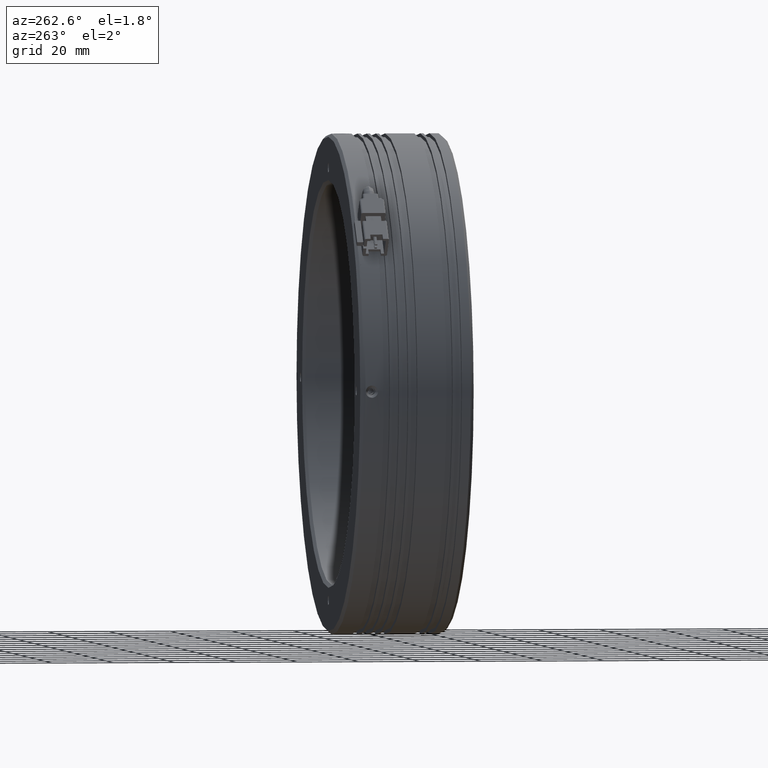
[diagram: clean part render]
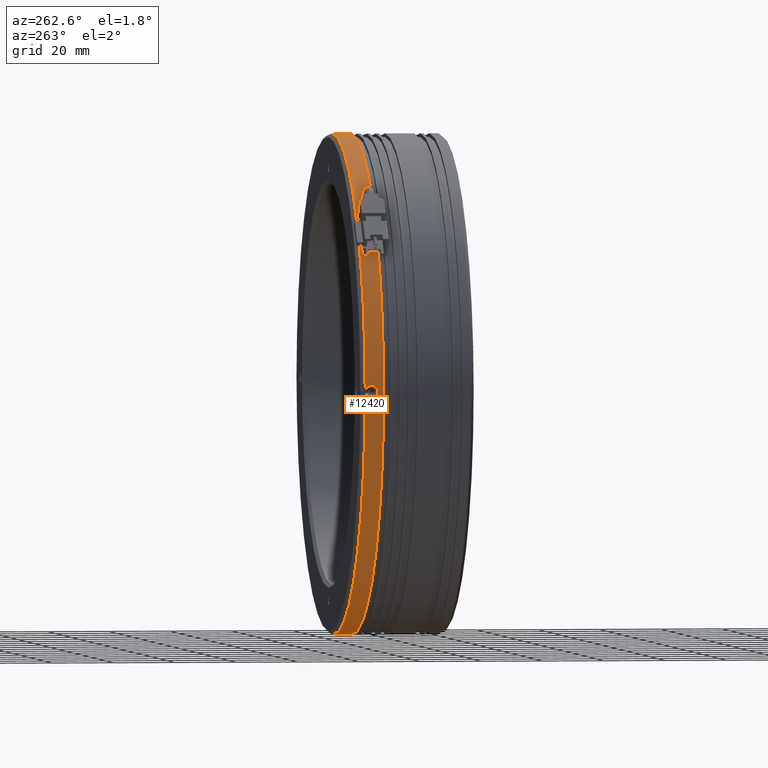
[diagram: same view with one face highlighted and labeled with its STEP entity id]
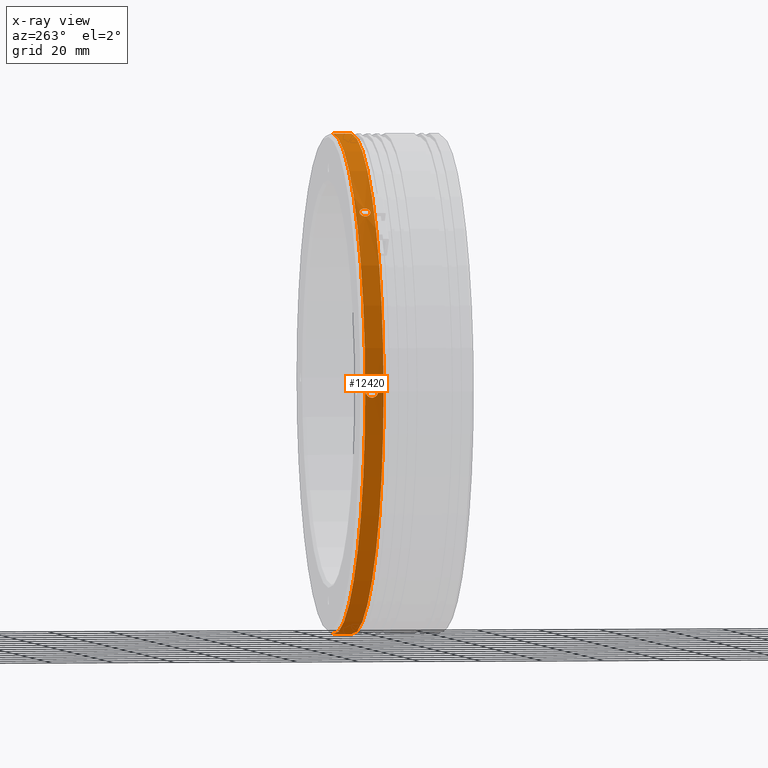
[diagram: x-ray of the same camera — body ghosted, the highlighted face saturated]
A machine part, auxiliary view. The second image highlights one B-rep face of the part: STEP entity #12420.
The next image is the same camera in x-ray: the body ghosted, the highlighted face saturated — about 0% of this face is hidden behind the body in this view.
In plain terms, the highlighted cylindrical surface (partial cylindrical patch) has radius 81 mm, axis along (-0, -1, -0).
Its self-contained STEP definition (entity closure, byte-faithful):
#36 = CARTESIAN_POINT ( 'NONE',  ( -11.74828480183142800, 24.43183382890321900, -80.97620778270633900 ) ) ;
#157 = CIRCLE ( 'NONE', #1471, 81.00000000000000000 ) ;
#314 = CARTESIAN_POINT ( 'NONE',  ( -10.42641141089481300, 22.27489432019287100, 80.99754875068434500 ) ) ;
#403 = CARTESIAN_POINT ( 'NONE',  ( -11.69840905936837100, 23.65539804451717000, -80.97740162032246800 ) ) ;
#419 = CARTESIAN_POINT ( 'NONE',  ( -9.785022266880036000, 26.37111437184006100, 0.0000000000000000000 ) ) ;
#422 = DIRECTION ( 'NONE',  ( -0.0000000000000000000, -1.000000000000000000, -0.0000000000000000000 ) ) ;
#440 = DIRECTION ( 'NONE',  ( 0.0000000000000000000, 0.0000000000000000000, -1.000000000000000000 ) ) ;
#598 = CARTESIAN_POINT ( 'NONE',  ( -68.28473947625502700, 23.37111437184005800, 56.02484347522226200 ) ) ;
#665 = AXIS2_PLACEMENT_3D ( 'NONE', #11434, #2344, #4518 ) ;
#787 = CARTESIAN_POINT ( 'NONE',  ( -90.78348996542590000, 26.10665102794072800, 0.5141684499229808300 ) ) ;
#800 = DIRECTION ( 'NONE',  ( -0.0000000000000000000, -1.000000000000000000, -0.0000000000000000000 ) ) ;
#802 = LINE ( 'NONE', #11123, #6247 ) ;
#847 = CARTESIAN_POINT ( 'NONE',  ( -66.73489396084723100, 21.66725524563013400, 57.59996915224105200 ) ) ;
#953 = CARTESIAN_POINT ( 'NONE',  ( -65.80986574210211900, 23.37111437184005800, 58.49971720937517000 ) ) ;
#984 = CARTESIAN_POINT ( 'NONE',  ( -65.80986574210213300, 23.60232713314788500, 58.49971720937519100 ) ) ;
#1001 = CARTESIAN_POINT ( 'NONE',  ( -65.84283319828527700, 23.82961347443286500, 58.46819282640033300 ) ) ;
#1021 = CARTESIAN_POINT ( 'NONE',  ( -10.04549515732486500, 26.15800746463016000, -80.99968120299523400 ) ) ;
#1038 = EDGE_CURVE ( 'NONE', #5665, #3321, #12055, .T. ) ;
#1050 = CARTESIAN_POINT ( 'NONE',  ( -65.93798344710529600, 24.14765642876648100, 58.37676665758129200 ) ) ;
#1068 = CARTESIAN_POINT ( 'NONE',  ( -11.76091888159797900, 24.17111437184005900, -80.97589661478252800 ) ) ;
#1099 = CARTESIAN_POINT ( 'NONE',  ( -65.97748663612787800, 24.24986317514565900, 58.33876044164112100 ) ) ;
#1163 = CARTESIAN_POINT ( 'NONE',  ( -66.06876800646118400, 24.43930883467826100, 58.25069945741904600 ) ) ;
#1173 = CARTESIAN_POINT ( 'NONE',  ( -66.12096941639710200, 24.52785385864800500, 58.20023830333379800 ) ) ;
#1202 = CARTESIAN_POINT ( 'NONE',  ( -66.23830414791547100, 24.69105621296529700, 58.08643253513150700 ) ) ;
#1210 = CARTESIAN_POINT ( 'NONE',  ( -66.30168217851648600, 24.76333365649894000, 58.02478907902907000 ) ) ;
#1254 = CARTESIAN_POINT ( 'NONE',  ( -66.43740990886965400, 24.88994155732427100, 57.89227901624811800 ) ) ;
#1288 = CARTESIAN_POINT ( 'NONE',  ( -66.51063661023820800, 24.94470801124568400, 57.82054911653097700 ) ) ;
#1348 = CARTESIAN_POINT ( 'NONE',  ( -66.66168595529242700, 25.03225265402858900, 57.67197196597156500 ) ) ;
#1352 = VERTEX_POINT ( 'NONE', #1555 ) ;
#1362 = CARTESIAN_POINT ( 'NONE',  ( -10.77912663496866400, 22.43771255758580500, 80.99397129515043000 ) ) ;
#1373 = CARTESIAN_POINT ( 'NONE',  ( -66.73930990203804500, 25.06525847209005800, 57.59532718081192800 ) ) ;
#1383 = CARTESIAN_POINT ( 'NONE',  ( -66.89867830059749600, 25.10985498084178500, 57.43729526671056400 ) ) ;
#1408 = CARTESIAN_POINT ( 'NONE',  ( -65.80986574210211900, 23.25550800685361700, 58.49971720937518400 ) ) ;
#1419 = CARTESIAN_POINT ( 'NONE',  ( -66.98081609141613100, 25.12119126260634900, 57.35550707700431200 ) ) ;
#1437 = CARTESIAN_POINT ( 'NONE',  ( -65.80986574210211900, 23.37111437184005800, 58.49971720937517000 ) ) ;
#1452 = CARTESIAN_POINT ( 'NONE',  ( -11.56274197615486600, 23.28854709550305200, -80.98050449408603400 ) ) ;
#1453 = CARTESIAN_POINT ( 'NONE',  ( -65.81806136815582400, 23.14183399949140000, 58.49187142760079200 ) ) ;
#1465 = CARTESIAN_POINT ( 'NONE',  ( -67.22289674115607700, 25.12095938616026900, 57.11341934251377200 ) ) ;
#1469 = CARTESIAN_POINT ( 'NONE',  ( -65.85015376115841000, 22.91819243457824800, 58.46111121555389900 ) ) ;
#1471 = AXIS2_PLACEMENT_3D ( 'NONE', #419, #422, #440 ) ;
#1478 = CARTESIAN_POINT ( 'NONE',  ( -67.68028337455469100, 24.90038814405682600, 56.64965201634181800 ) ) ;
#1491 = CARTESIAN_POINT ( 'NONE',  ( -65.87443956132904100, 22.80706695431693400, 58.43782333905974700 ) ) ;
#1500 = CARTESIAN_POINT ( 'NONE',  ( -65.93778030917302100, 22.59515475697780600, 58.37696200798472300 ) ) ;
#1508 = CARTESIAN_POINT ( 'NONE',  ( -67.81656445453262400, 24.77000256405627700, 56.50987682497380100 ) ) ;
#1530 = CARTESIAN_POINT ( 'NONE',  ( -65.97651684405173000, 22.49464748272625800, 58.33969462461521300 ) ) ;
#1533 = CARTESIAN_POINT ( 'NONE',  ( -66.06791247935294100, 22.30443158648087700, 58.25152616919488200 ) ) ;
#1545 = CARTESIAN_POINT ( 'NONE',  ( -66.12105495167492100, 22.21437071494665000, 58.20015410804751400 ) ) ;
#1555 = CARTESIAN_POINT ( 'NONE',  ( -9.785022266880036000, 22.17111437190406400, -81.00000000000000000 ) ) ;
#1564 = CARTESIAN_POINT ( 'NONE',  ( -66.29489909185367900, 21.97222617962384900, 58.03154218765274700 ) ) ;
#1574 = CARTESIAN_POINT ( 'NONE',  ( -67.98517637492740600, 24.52785802873345800, 56.33603268479502900 ) ) ;
#1577 = FACE_BOUND ( 'NONE', #11075, .T. ) ;
#1585 = CARTESIAN_POINT ( 'NONE',  ( -66.43467428322166800, 21.84184059962329600, 57.89526110767482700 ) ) ;
#1589 = CARTESIAN_POINT ( 'NONE',  ( -67.14052934388418200, 21.62103748107377000, 57.19579382453622400 ) ) ;
#1610 = CARTESIAN_POINT ( 'NONE',  ( -68.03654843607475300, 24.43779715719924500, 56.28289021247304900 ) ) ;
#1666 = CARTESIAN_POINT ( 'NONE',  ( -68.12471689149511200, 24.24758126095386900, 56.19149457717185900 ) ) ;
#1691 = CARTESIAN_POINT ( 'NONE',  ( -68.16198427486456500, 24.14707398670231300, 56.15275804229317900 ) ) ;
#1699 = CARTESIAN_POINT ( 'NONE',  ( -68.22284560593961100, 23.93516178936317800, 56.08941729444918400 ) ) ;
#1710 = CARTESIAN_POINT ( 'NONE',  ( -68.03572172429892400, 22.30291990900185400, 56.28374573958130600 ) ) ;
#1715 = CARTESIAN_POINT ( 'NONE',  ( -67.80981134590892600, 21.97889508718118300, 56.51665991163660200 ) ) ;
#1722 = CARTESIAN_POINT ( 'NONE',  ( -68.16178892446116300, 22.59457231491363800, 56.15296118022543200 ) ) ;
#1739 = CARTESIAN_POINT ( 'NONE',  ( -67.98526057021365400, 22.21437488503211500, 56.33594714951724600 ) ) ;
#1753 = CARTESIAN_POINT ( 'NONE',  ( -66.89844160939364300, 21.62126935751984600, 57.43787447427622100 ) ) ;
#1758 = CARTESIAN_POINT ( 'NONE',  ( -68.24613348243376300, 23.82403630910187400, 56.06513149427852500 ) ) ;
#1767 = CARTESIAN_POINT ( 'NONE',  ( -68.12378270852100600, 22.49236556853445600, 56.19246436924800700 ) ) ;
#1778 = CARTESIAN_POINT ( 'NONE',  ( -68.27689369448066300, 23.60039474418871900, 56.03303910127596100 ) ) ;
#1796 = CARTESIAN_POINT ( 'NONE',  ( -68.25321509328020400, 22.91261526924725800, 56.05781093140542000 ) ) ;
#1812 = CARTESIAN_POINT ( 'NONE',  ( -68.28473947625505500, 23.13990167320212500, 56.02484347522227600 ) ) ;
#1819 = CARTESIAN_POINT ( 'NONE',  ( -68.28473947625504100, 23.48672073682649500, 56.02484347522228300 ) ) ;
#1823 = CARTESIAN_POINT ( 'NONE',  ( -68.28473947625502700, 23.37111437184005800, 56.02484347522226200 ) ) ;
#1858 = VECTOR ( 'NONE', #9754, 1000.000000000000000 ) ;
#1935 = CARTESIAN_POINT ( 'NONE',  ( -67.60557138341087600, 21.79752073243442500, 56.72561434335835900 ) ) ;
#1948 = CARTESIAN_POINT ( 'NONE',  ( -67.67730128312800300, 21.85228718635584500, 56.65238764198980400 ) ) ;
#1981 = CARTESIAN_POINT ( 'NONE',  ( -67.22231753359045600, 21.63237376283833400, 57.11365603371763900 ) ) ;
#1983 = CARTESIAN_POINT ( 'NONE',  ( -67.38034944769179900, 21.67697027159006500, 56.95428763515818100 ) ) ;
#1998 = CARTESIAN_POINT ( 'NONE',  ( -67.45699423285144300, 21.70997608965153000, 56.87666368841256300 ) ) ;
#2016 = CARTESIAN_POINT ( 'NONE',  ( -90.76553000844218400, 23.28823684472244100, 1.777572752244399600 ) ) ;
#2067 = CARTESIAN_POINT ( 'NONE',  ( -10.42641141089550200, 26.06733442348742000, -80.99754875068435900 ) ) ;
#2184 = B_SPLINE_CURVE_WITH_KNOTS ( 'NONE', 3,
 ( #3682, #3783, #3598, #3566, #3558, #2016, #3510, #3501, #3471, #3463, #3432, #3423, #3332, #3322, #3291, #3209, #3196, #3164, #3154, #3133, #3108, #3092, #3761, #3073, #3060, #3013, #3000, #2970 ),
 .UNSPECIFIED., .F., .F.,
 ( 4, 2, 2, 2, 2, 2, 2, 2, 2, 2, 2, 2, 2, 4 ),
 ( 0.0000000000000000000, 0.0003896511351084976600, 0.0007793022702169954300, 0.001168953405325493400, 0.001558604540433991300, 0.002337906810650987600, 0.002727557945759484900, 0.003117209080867982600, 0.003506860215976479900, 0.003896511351084978000, 0.004675813621301973400, 0.005065464756410466800, 0.005455115891518960200, 0.006234418161735946900 ),
 .UNSPECIFIED. ) ;
#2237 = CARTESIAN_POINT ( 'NONE',  ( -9.785022266880025300, 22.17111437190462900, 81.00000000000000000 ) ) ;
#2344 = DIRECTION ( 'NONE',  ( -0.0000000000000000000, -1.000000000000000000, -0.0000000000000000000 ) ) ;
#2397 = CARTESIAN_POINT ( 'NONE',  ( -11.09556691876953000, 22.66874346650442400, 80.98944805985138400 ) ) ;
#2452 = CARTESIAN_POINT ( 'NONE',  ( -90.78502462489535700, 26.17121222949551300, 0.1284434222430155300 ) ) ;
#2489 = CARTESIAN_POINT ( 'NONE',  ( -11.35977316050903100, 22.95610301343656100, -80.98472242458849700 ) ) ;
#2684 = CYLINDRICAL_SURFACE ( 'NONE', #665, 81.00000000000000000 ) ;
#2688 = CARTESIAN_POINT ( 'NONE',  ( -9.785022266880036000, -37.73097191106735000, -81.00000000000000000 ) ) ;
#2733 = ORIENTED_EDGE ( 'NONE', *, *, #9345, .T. ) ;
#2939 = CARTESIAN_POINT ( 'NONE',  ( -90.76091888166116900, 24.30237740075952100, -1.975896614773986500 ) ) ;
#2953 = CARTESIAN_POINT ( 'NONE',  ( -90.76091888166118300, 24.17111437184005900, -1.975896614773990000 ) ) ;
#2970 = CARTESIAN_POINT ( 'NONE',  ( -90.76091888166118300, 24.17111437184005900, -1.975896614773990000 ) ) ;
#2971 = CARTESIAN_POINT ( 'NONE',  ( -90.76123031354050900, 24.43179201406771400, -1.963250753960293200 ) ) ;
#2982 = CARTESIAN_POINT ( 'NONE',  ( -90.76242500934590400, 24.68702278896634200, -1.913339547348345000 ) ) ;
#2994 = CARTESIAN_POINT ( 'NONE',  ( -90.76332105511654900, 24.81374059659415800, -1.875506420629359200 ) ) ;
#3000 = CARTESIAN_POINT ( 'NONE',  ( -90.76091888166118300, 23.90858524844445700, -1.975896614773986900 ) ) ;
#3013 = CARTESIAN_POINT ( 'NONE',  ( -90.76221548276473100, 23.64876802429898800, -1.924519398542629400 ) ) ;
#3014 = CARTESIAN_POINT ( 'NONE',  ( -90.76553000844215500, 25.05399189895766900, -1.777572752244966900 ) ) ;
#3034 = CARTESIAN_POINT ( 'NONE',  ( -90.76684415010947800, 25.16859268814437600, -1.717451206225377900 ) ) ;
#3049 = CARTESIAN_POINT ( 'NONE',  ( -90.76975051396347300, 25.38652580681637600, -1.574453847819835600 ) ) ;
#3053 = CARTESIAN_POINT ( 'NONE',  ( -90.77133517309874800, 25.48900420890289100, -1.491760192881963500 ) ) ;
#3060 = CARTESIAN_POINT ( 'NONE',  ( -90.76552902182066900, 23.28832663625585300, -1.777617709900015200 ) ) ;
#3071 = CARTESIAN_POINT ( 'NONE',  ( -90.77604177709349600, 25.76593914684158900, -1.219698800662305100 ) ) ;
#3073 = CARTESIAN_POINT ( 'NONE',  ( -90.76687394077598000, 23.17122062063727500, -1.716038249578416600 ) ) ;
#3074 = CARTESIAN_POINT ( 'NONE',  ( -90.77921028537036800, 25.91622508544903200, -0.9991959111168009500 ) ) ;
#3087 = CARTESIAN_POINT ( 'NONE',  ( -90.78257013278369000, 26.06729235918344800, -0.6414522752959377300 ) ) ;
#3092 = CARTESIAN_POINT ( 'NONE',  ( -90.77132905643824800, 22.85355817434152900, -1.492139316941491400 ) ) ;
#3102 = CARTESIAN_POINT ( 'NONE',  ( -10.77912663496921300, 25.90451618609432300, -80.99397129515043000 ) ) ;
#3103 = CARTESIAN_POINT ( 'NONE',  ( -90.78348283592723100, 26.10634750411608700, -0.5154366478031747700 ) ) ;
#3105 = CARTESIAN_POINT ( 'NONE',  ( -90.78470496005374500, 26.15807067305441800, -0.2601789741003270900 ) ) ;
#3108 = CARTESIAN_POINT ( 'NONE',  ( -90.77607436324561300, 22.57442493357350300, -1.217763909053625900 ) ) ;
#3133 = CARTESIAN_POINT ( 'NONE',  ( -90.77920904016116300, 22.42601316318984000, -0.9999646600192290100 ) ) ;
#3154 = CARTESIAN_POINT ( 'NONE',  ( -90.78259908924509600, 22.27365796251238800, -0.6380470215250447800 ) ) ;
#3164 = CARTESIAN_POINT ( 'NONE',  ( -90.78348996542587200, 22.23557771573940700, -0.5141684499235407200 ) ) ;
#3196 = CARTESIAN_POINT ( 'NONE',  ( -90.78470429919205700, 22.18418783605645600, -0.2600949281034229400 ) ) ;
#3209 = CARTESIAN_POINT ( 'NONE',  ( -90.78502462489537100, 22.17101651418460800, -0.1284434222435773500 ) ) ;
#3235 = VERTEX_POINT ( 'NONE', #3873 ) ;
#3277 = VERTEX_POINT ( 'NONE', #4185 ) ;
#3291 = CARTESIAN_POINT ( 'NONE',  ( -90.78501988187680600, 22.17121334950987300, 0.1314004631802773400 ) ) ;
#3321 = VERTEX_POINT ( 'NONE', #4750 ) ;
#3322 = CARTESIAN_POINT ( 'NONE',  ( -90.78470496005375900, 22.18415807062569200, 0.2601789740997606500 ) ) ;
#3332 = CARTESIAN_POINT ( 'NONE',  ( -90.78348283592725900, 22.23588123956404800, 0.5154366478026054500 ) ) ;
#3391 = CARTESIAN_POINT ( 'NONE',  ( -9.785022266880025300, 22.17111437190462900, 81.00000000000000000 ) ) ;
#3397 = ORIENTED_EDGE ( 'NONE', *, *, #4275, .T. ) ;
#3423 = CARTESIAN_POINT ( 'NONE',  ( -90.78257013278371800, 22.27493638449668000, 0.6414522752953697400 ) ) ;
#3432 = CARTESIAN_POINT ( 'NONE',  ( -90.77921028537036800, 22.42600365823108900, 0.9991959111162287400 ) ) ;
#3440 = CARTESIAN_POINT ( 'NONE',  ( -11.51378264215607700, 23.16849682844647900, 80.98160872535589800 ) ) ;
#3463 = CARTESIAN_POINT ( 'NONE',  ( -90.77604177709351100, 22.57628959683851700, 1.219698800661740600 ) ) ;
#3465 = DIRECTION ( 'NONE',  ( -0.0000000000000000000, -1.000000000000000000, -0.0000000000000000000 ) ) ;
#3471 = CARTESIAN_POINT ( 'NONE',  ( -90.77133517309873400, 22.85322453477722600, 1.491760192881395300 ) ) ;
#3501 = CARTESIAN_POINT ( 'NONE',  ( -90.76975051396350100, 22.95570293686374400, 1.574453847819271100 ) ) ;
#3510 = CARTESIAN_POINT ( 'NONE',  ( -90.76684415010952000, 23.17363605553573400, 1.717451206224811500 ) ) ;
#3528 = CARTESIAN_POINT ( 'NONE',  ( -11.00525555266699000, 22.57672452325018900, -80.99101118588654900 ) ) ;
#3558 = CARTESIAN_POINT ( 'NONE',  ( -90.76332105511657700, 23.52848814708596600, 1.875506420628791000 ) ) ;
#3566 = CARTESIAN_POINT ( 'NONE',  ( -90.76242500934590400, 23.65520595471377900, 1.913339547347780300 ) ) ;
#3598 = CARTESIAN_POINT ( 'NONE',  ( -90.76123031354052300, 23.91043672961241000, 1.963250753959727300 ) ) ;
#3682 = CARTESIAN_POINT ( 'NONE',  ( -90.76091888166119800, 24.17111437184005100, 1.975896614773424000 ) ) ;
#3761 = CARTESIAN_POINT ( 'NONE',  ( -90.76977063958278800, 22.95437856797485000, -1.573409932892501800 ) ) ;
#3783 = CARTESIAN_POINT ( 'NONE',  ( -90.76091888166119800, 24.03985134292058800, 1.975896614773423200 ) ) ;
#3873 = CARTESIAN_POINT ( 'NONE',  ( -9.785022266880036000, 26.37111437184006100, -81.00000000000000000 ) ) ;
#4003 = EDGE_LOOP ( 'NONE', ( #2733, #3397 ) ) ;
#4100 = CARTESIAN_POINT ( 'NONE',  ( -9.916265321284379700, 26.17111437177898400, -80.99999999999283800 ) ) ;
#4148 = CARTESIAN_POINT ( 'NONE',  ( -11.09556691876991200, 25.67348527717560100, -80.98944805985139800 ) ) ;
#4185 = CARTESIAN_POINT ( 'NONE',  ( -90.76091888166119800, 24.17111437184005100, 1.975896614773424000 ) ) ;
#4275 = EDGE_CURVE ( 'NONE', #4418, #3277, #9560, .T. ) ;
#4312 = VERTEX_POINT ( 'NONE', #10083 ) ;
#4359 = CARTESIAN_POINT ( 'NONE',  ( -9.785022266880036000, 20.37111437184005400, 0.0000000000000000000 ) ) ;
#4418 = VERTEX_POINT ( 'NONE', #11038 ) ;
#4426 = CARTESIAN_POINT ( 'NONE',  ( -9.916265321284420500, 22.17111437190102700, 80.99999999999128900 ) ) ;
#4442 = VERTEX_POINT ( 'NONE', #7006 ) ;
#4469 = CARTESIAN_POINT ( 'NONE',  ( -11.69823321402223100, 23.65465063066849500, 80.97740580261206800 ) ) ;
#4518 = DIRECTION ( 'NONE',  ( 0.0000000000000000000, 0.0000000000000000000, -1.000000000000000000 ) ) ;
#4558 = CARTESIAN_POINT ( 'NONE',  ( -10.42735741858208200, 22.27524622616451200, -80.99754076703068500 ) ) ;
#4601 = VERTEX_POINT ( 'NONE', #10714 ) ;
#4617 = LINE ( 'NONE', #10983, #9644 ) ;
#4750 = CARTESIAN_POINT ( 'NONE',  ( -9.785022266880025300, 20.37111437184005400, 81.00000000000000000 ) ) ;
#4846 = EDGE_CURVE ( 'NONE', #4442, #3235, #157, .T. ) ;
#5000 = EDGE_CURVE ( 'NONE', #4312, #6223, #12738, .T. ) ;
#5121 = CARTESIAN_POINT ( 'NONE',  ( -9.785022266880036000, 26.17111437177605300, -81.00000000000000000 ) ) ;
#5177 = CARTESIAN_POINT ( 'NONE',  ( -11.51378264215622800, 25.17373191523349600, -80.98160872535589800 ) ) ;
#5311 = CARTESIAN_POINT ( 'NONE',  ( -11.76091888159797900, 24.17111437184005900, -80.97589661478252800 ) ) ;
#5365 = DIRECTION ( 'NONE',  ( 0.0000000000000000000, 0.0000000000000000000, -1.000000000000000000 ) ) ;
#5484 = CARTESIAN_POINT ( 'NONE',  ( -9.785022266880036000, 20.37111437184005400, -81.00000000000000000 ) ) ;
#5497 = CARTESIAN_POINT ( 'NONE',  ( -11.76091888159829900, 24.03991468720128600, 80.97589661478173200 ) ) ;
#5518 = EDGE_LOOP ( 'NONE', ( #11818, #10605, #6462, #10282, #9005, #7430, #6160, #6242, #7157, #10192 ) ) ;
#5529 = EDGE_CURVE ( 'NONE', #4601, #10946, #8937, .T. ) ;
#5538 = CARTESIAN_POINT ( 'NONE',  ( -11.76091888159797900, 24.17111437184005900, -80.97589661478252800 ) ) ;
#5574 = CARTESIAN_POINT ( 'NONE',  ( -10.04583316528009200, 22.18422494589111300, -80.99968105721905000 ) ) ;
#5665 = VERTEX_POINT ( 'NONE', #2237 ) ;
#5715 = VERTEX_POINT ( 'NONE', #6002 ) ;
#5757 = AXIS2_PLACEMENT_3D ( 'NONE', #4359, #11341, #5365 ) ;
#5934 = B_SPLINE_CURVE_WITH_KNOTS ( 'NONE', 3,
 ( #598, #1819, #1778, #1758, #1699, #1691, #1666, #1610, #1574, #1508, #1478, #8720, #1465, #1419, #1383, #1373, #1348, #1288, #1254, #1210, #1202, #1173, #1163, #1099, #1050, #1001, #984, #953 ),
 .UNSPECIFIED., .F., .F.,
 ( 4, 2, 2, 2, 2, 2, 2, 2, 2, 2, 2, 2, 2, 4 ),
 ( 0.005470331731803198100, 0.005812227511376099100, 0.006154123290949001100, 0.006496019070521902100, 0.006837914850094803200, 0.007521706409240606200, 0.008205497968386408400, 0.008547393747959295500, 0.008889289527532182700, 0.009231185307105069900, 0.009573081086677955400, 0.009914976866250842600, 0.01025687264582372800, 0.01094066420496948700 ),
 .UNSPECIFIED. ) ;
#5968 = CARTESIAN_POINT ( 'NONE',  ( -9.785022266880025300, -37.73097191106735000, 81.00000000000000000 ) ) ;
#6002 = CARTESIAN_POINT ( 'NONE',  ( -9.785022266880036000, 26.17111437177605300, -81.00000000000000000 ) ) ;
#6081 = CARTESIAN_POINT ( 'NONE',  ( -11.76091888159797900, 24.17111437184005900, 80.97589661478252800 ) ) ;
#6096 = DIRECTION ( 'NONE',  ( -0.0000000000000000000, -1.000000000000000000, -0.0000000000000000000 ) ) ;
#6100 = CARTESIAN_POINT ( 'NONE',  ( -11.76091888159830200, 24.30232765191509600, 80.97589661478174600 ) ) ;
#6124 = CARTESIAN_POINT ( 'NONE',  ( -11.74828251409446100, 24.43169390400110400, 80.97620781067966800 ) ) ;
#6133 = CARTESIAN_POINT ( 'NONE',  ( -11.69840905936836800, 24.68683069916289300, 80.97740162032246800 ) ) ;
#6144 = CARTESIAN_POINT ( 'NONE',  ( -11.66060439339639000, 24.81350449496235900, 80.97829701326227800 ) ) ;
#6157 = CARTESIAN_POINT ( 'NONE',  ( -11.69823321402227000, 24.68757811301155400, -80.97740580261209700 ) ) ;
#6159 = CARTESIAN_POINT ( 'NONE',  ( -11.56274197615484800, 25.05368164817696900, 80.98050449408602000 ) ) ;
#6160 = ORIENTED_EDGE ( 'NONE', *, *, #11519, .T. ) ;
#6164 = CARTESIAN_POINT ( 'NONE',  ( -11.50266410359489600, 25.16824934838189900, 80.98181779316512100 ) ) ;
#6204 = CARTESIAN_POINT ( 'NONE',  ( -11.35977316050899900, 25.38612573024341400, 80.98472242458846900 ) ) ;
#6207 = CARTESIAN_POINT ( 'NONE',  ( -11.27713379560804300, 25.48859182632454800, 80.98630636553242800 ) ) ;
#6223 = VERTEX_POINT ( 'NONE', #11332 ) ;
#6234 = CARTESIAN_POINT ( 'NONE',  ( -11.00525555266694300, 25.76550422042968300, 80.99101118588657800 ) ) ;
#6242 = ORIENTED_EDGE ( 'NONE', *, *, #1038, .F. ) ;
#6245 = CARTESIAN_POINT ( 'NONE',  ( -10.78489271142352700, 25.91581364245169500, 80.99417928536452400 ) ) ;
#6247 = VECTOR ( 'NONE', #6096, 1000.000000000000000 ) ;
#6260 = CARTESIAN_POINT ( 'NONE',  ( -10.42735741858203500, 26.06698251751523200, 80.99754076703068500 ) ) ;
#6271 = CARTESIAN_POINT ( 'NONE',  ( -10.30159336043150900, 26.10605603365903300, 80.99845373833528600 ) ) ;
#6285 = CARTESIAN_POINT ( 'NONE',  ( -10.04583316528005500, 26.15800379778851000, 80.99968105721905000 ) ) ;
#6288 = CARTESIAN_POINT ( 'NONE',  ( -9.916280237717431900, 26.17111437177555200, 80.99999999999998600 ) ) ;
#6300 = CARTESIAN_POINT ( 'NONE',  ( -9.785022266880025300, 26.17111437177548800, 81.00000000000000000 ) ) ;
#6432 = CARTESIAN_POINT ( 'NONE',  ( -10.30005943013607200, 22.23579664135820600, 80.99846256463132500 ) ) ;
#6462 = ORIENTED_EDGE ( 'NONE', *, *, #12881, .T. ) ;
#6509 = CARTESIAN_POINT ( 'NONE',  ( -11.74828251409446100, 23.91053483967898400, -80.97620781067968200 ) ) ;
#6546 = CARTESIAN_POINT ( 'NONE',  ( -9.785022266880036000, 22.17111437190406400, -81.00000000000000000 ) ) ;
#6892 = LINE ( 'NONE', #2688, #1858 ) ;
#7006 = CARTESIAN_POINT ( 'NONE',  ( -9.785022266880025300, 26.37111437184006100, 81.00000000000000000 ) ) ;
#7140 = CARTESIAN_POINT ( 'NONE',  ( -11.76091888159829300, 24.30231405647882100, -80.97589661478173200 ) ) ;
#7157 = ORIENTED_EDGE ( 'NONE', *, *, #12401, .T. ) ;
#7372 = CARTESIAN_POINT ( 'NONE',  ( -90.76977063958274500, 25.38785017570527500, 1.573409932891940600 ) ) ;
#7382 = CARTESIAN_POINT ( 'NONE',  ( -90.76687394077605100, 25.17100812304284600, 1.716038249577856100 ) ) ;
#7384 = CARTESIAN_POINT ( 'NONE',  ( -90.76552902182068300, 25.05390210742425300, 1.777617709899451900 ) ) ;
#7405 = CARTESIAN_POINT ( 'NONE',  ( -90.76221548276473100, 24.69346071938113600, 1.924519398542065700 ) ) ;
#7419 = CARTESIAN_POINT ( 'NONE',  ( -90.76091888166122600, 24.43363736415812000, 1.975896614773426300 ) ) ;
#7422 = CARTESIAN_POINT ( 'NONE',  ( -90.76091888166119800, 24.17111437184005100, 1.975896614773424000 ) ) ;
#7424 = CARTESIAN_POINT ( 'NONE',  ( -10.66542934419754500, 22.37585717586514300, 80.99530336403316300 ) ) ;
#7430 = ORIENTED_EDGE ( 'NONE', *, *, #11839, .T. ) ;
#7521 = CARTESIAN_POINT ( 'NONE',  ( -11.66060439339640100, 23.52872424871768700, -80.97829701326227800 ) ) ;
#7865 = CARTESIAN_POINT ( 'NONE',  ( -90.78470429919205700, 26.15804090762368600, 0.2600949281028596100 ) ) ;
#8093 = CARTESIAN_POINT ( 'NONE',  ( -10.30005943013680200, 26.10643210232214900, -80.99846256463133900 ) ) ;
#8333 = EDGE_CURVE ( 'NONE', #10946, #4601, #5934, .T. ) ;
#8369 = CARTESIAN_POINT ( 'NONE',  ( -90.78501988187680600, 26.17101539417024700, -0.1314004631808426400 ) ) ;
#8441 = CARTESIAN_POINT ( 'NONE',  ( -10.99478842550482000, 22.58438865028664100, 80.99103713063409800 ) ) ;
#8526 = CARTESIAN_POINT ( 'NONE',  ( -11.50266410359491300, 23.17397939529810500, -80.98181779316512100 ) ) ;
#8695 = CARTESIAN_POINT ( 'NONE',  ( -68.28473947625502700, 23.37111437184005800, 56.02484347522226200 ) ) ;
#8720 = CARTESIAN_POINT ( 'NONE',  ( -67.38499141912092200, 25.07497349804998900, 56.94987169396735300 ) ) ;
#8847 = B_SPLINE_CURVE_WITH_KNOTS ( 'NONE', 3,
 ( #5538, #12536, #6509, #403, #7521, #1452, #8526, #2489, #9554, #3528, #10569, #4558, #11568, #5574, #12578, #6546 ),
 .UNSPECIFIED., .F., .F.,
 ( 4, 2, 2, 2, 2, 2, 2, 4 ),
 ( -4.228388472693467300E-017, 0.0003895034568637693900, 0.0007790069137275810700, 0.001168510370591392900, 0.001558013827455204400, 0.002337020741182831700, 0.002726524198046644300, 0.003116027654910457800 ),
 .UNSPECIFIED. ) ;
#8937 = B_SPLINE_CURVE_WITH_KNOTS ( 'NONE', 3,
 ( #1437, #1408, #1453, #1469, #1491, #1500, #1530, #1533, #1545, #1564, #1585, #847, #1753, #1589, #1981, #1983, #1998, #1935, #1948, #1715, #10745, #1739, #1710, #1767, #1722, #1796, #1812, #1823 ),
 .UNSPECIFIED., .F., .F.,
 ( 4, 2, 2, 2, 2, 2, 2, 2, 2, 2, 2, 2, 2, 4 ),
 ( 0.0000000000000000000, 0.0003418957332377055200, 0.0006837914664754110300, 0.001025687199713116400, 0.001367582932950822100, 0.002051374399426229400, 0.002735165865901636800, 0.003077061599139333100, 0.003418957332377029400, 0.003760853065614726100, 0.004102748798852422400, 0.004444644532090118700, 0.004786540265327815000, 0.005470331731803198100 ),
 .UNSPECIFIED. ) ;
#9005 = ORIENTED_EDGE ( 'NONE', *, *, #11616, .T. ) ;
#9046 = ORIENTED_EDGE ( 'NONE', *, *, #5529, .T. ) ;
#9120 = CARTESIAN_POINT ( 'NONE',  ( -10.66542934419814300, 25.96637156781503800, -80.99530336403316300 ) ) ;
#9302 = VERTEX_POINT ( 'NONE', #5484 ) ;
#9324 = FACE_OUTER_BOUND ( 'NONE', #5518, .T. ) ;
#9345 = EDGE_CURVE ( 'NONE', #3277, #4418, #2184, .T. ) ;
#9460 = CARTESIAN_POINT ( 'NONE',  ( -11.36759038296612100, 22.94569786408913400, 80.98474162120780300 ) ) ;
#9554 = CARTESIAN_POINT ( 'NONE',  ( -11.27713379560808000, 22.85363691735539900, -80.98630636553244200 ) ) ;
#9560 = B_SPLINE_CURVE_WITH_KNOTS ( 'NONE', 3,
 ( #2953, #2939, #2971, #2982, #2994, #3014, #3034, #3049, #3053, #3071, #3074, #3087, #3103, #3105, #8369, #2452, #7865, #787, #13133, #13100, #13070, #12831, #7372, #7382, #7384, #7405, #7419, #7422 ),
 .UNSPECIFIED., .F., .F.,
 ( 4, 2, 2, 2, 2, 2, 2, 2, 2, 2, 2, 2, 2, 4 ),
 ( 0.006234418161735946900, 0.006624064746882057800, 0.007013711332028167700, 0.007403357917174278500, 0.007793004502320388500, 0.008572297672612609300, 0.008961944257758721800, 0.009351590842904834400, 0.009741237428050946900, 0.01013088401319706100, 0.01091017718348927900, 0.01129982376863538800, 0.01168947035378149400, 0.01246876352407370700 ),
 .UNSPECIFIED. ) ;
#9644 = VECTOR ( 'NONE', #800, 1000.000000000000000 ) ;
#9703 = ORIENTED_EDGE ( 'NONE', *, *, #8333, .T. ) ;
#9754 = DIRECTION ( 'NONE',  ( -0.0000000000000000000, -1.000000000000000000, -0.0000000000000000000 ) ) ;
#10083 = CARTESIAN_POINT ( 'NONE',  ( -11.76091888159797900, 24.17111437184005900, 80.97589661478252800 ) ) ;
#10181 = CARTESIAN_POINT ( 'NONE',  ( -10.99478842550526500, 25.75784009339343000, -80.99103713063414000 ) ) ;
#10192 = ORIENTED_EDGE ( 'NONE', *, *, #5000, .T. ) ;
#10282 = ORIENTED_EDGE ( 'NONE', *, *, #11120, .T. ) ;
#10458 = CIRCLE ( 'NONE', #5757, 81.00000000000000000 ) ;
#10486 = CARTESIAN_POINT ( 'NONE',  ( -11.66044029277813000, 23.52826793746680400, 80.97830078652911800 ) ) ;
#10569 = CARTESIAN_POINT ( 'NONE',  ( -10.78489271142357200, 22.42641510122814800, -80.99417928536448100 ) ) ;
#10605 = ORIENTED_EDGE ( 'NONE', *, *, #4846, .T. ) ;
#10714 = CARTESIAN_POINT ( 'NONE',  ( -65.80986574210211900, 23.37111437184005800, 58.49971720937517000 ) ) ;
#10745 = CARTESIAN_POINT ( 'NONE',  ( -67.87145480201138500, 22.05117253071482600, 56.45328188103559300 ) ) ;
#10868 = VERTEX_POINT ( 'NONE', #5311 ) ;
#10946 = VERTEX_POINT ( 'NONE', #8695 ) ;
#10983 = CARTESIAN_POINT ( 'NONE',  ( -9.785022266880025300, -37.73097191106735000, 81.00000000000000000 ) ) ;
#11038 = CARTESIAN_POINT ( 'NONE',  ( -90.76091888166118300, 24.17111437184005900, -1.975896614773990000 ) ) ;
#11075 = EDGE_LOOP ( 'NONE', ( #9046, #9703 ) ) ;
#11099 = VECTOR ( 'NONE', #3465, 1000.000000000000000 ) ;
#11120 = EDGE_CURVE ( 'NONE', #5715, #10868, #11144, .T. ) ;
#11123 = CARTESIAN_POINT ( 'NONE',  ( -9.785022266880036000, -37.73097191106735000, -81.00000000000000000 ) ) ;
#11144 = B_SPLINE_CURVE_WITH_KNOTS ( 'NONE', 3,
 ( #5121, #4100, #1021, #8093, #2067, #9120, #3102, #10181, #4148, #11150, #5177, #12164, #6157, #36, #7140, #1068 ),
 .UNSPECIFIED., .F., .F.,
 ( 4, 2, 2, 2, 2, 2, 2, 4 ),
 ( -0.003115704793113053900, -0.002726241693973927300, -0.002336778594834800600, -0.001947315495695674200, -0.001557852396556547600, -0.0007789261982782949200, -0.0003894630991391687100, -4.250072516143177400E-017 ),
 .UNSPECIFIED. ) ;
#11150 = CARTESIAN_POINT ( 'NONE',  ( -11.36759038296635500, 25.39653087959083800, -80.98474162120781700 ) ) ;
#11332 = CARTESIAN_POINT ( 'NONE',  ( -9.785022266880025300, 26.17111437177548800, 81.00000000000000000 ) ) ;
#11341 = DIRECTION ( 'NONE',  ( 0.0000000000000000000, 1.000000000000000000, 0.0000000000000000000 ) ) ;
#11434 = CARTESIAN_POINT ( 'NONE',  ( -9.785022266880036000, -37.73097191106735000, 0.0000000000000000000 ) ) ;
#11472 = CARTESIAN_POINT ( 'NONE',  ( -11.74828480183142300, 23.91039491477685900, 80.97620778270635400 ) ) ;
#11519 = EDGE_CURVE ( 'NONE', #9302, #3321, #10458, .T. ) ;
#11568 = CARTESIAN_POINT ( 'NONE',  ( -10.30159336043156600, 22.23617271002066800, -80.99845373833530000 ) ) ;
#11616 = EDGE_CURVE ( 'NONE', #10868, #1352, #8847, .T. ) ;
#11673 = FACE_BOUND ( 'NONE', #4003, .T. ) ;
#11768 = EDGE_CURVE ( 'NONE', #4442, #6223, #4617, .T. ) ;
#11818 = ORIENTED_EDGE ( 'NONE', *, *, #11768, .F. ) ;
#11839 = EDGE_CURVE ( 'NONE', #1352, #9302, #802, .T. ) ;
#12055 = LINE ( 'NONE', #5968, #11099 ) ;
#12164 = CARTESIAN_POINT ( 'NONE',  ( -11.66044029277819000, 24.81396080621321000, -80.97830078652913200 ) ) ;
#12401 = EDGE_CURVE ( 'NONE', #5665, #4312, #12588, .T. ) ;
#12420 = ADVANCED_FACE ( 'NONE', ( #9324, #11673, #1577 ), #2684, .T. ) ;
#12445 = CARTESIAN_POINT ( 'NONE',  ( -10.04549515732402700, 22.18422127905033000, 80.99968120299524800 ) ) ;
#12491 = CARTESIAN_POINT ( 'NONE',  ( -11.76091888159797900, 24.17111437184005900, 80.97589661478252800 ) ) ;
#12536 = CARTESIAN_POINT ( 'NONE',  ( -11.76091888159829000, 24.03990109176501400, -80.97589661478174600 ) ) ;
#12578 = CARTESIAN_POINT ( 'NONE',  ( -9.916280237717629100, 22.17111437190405000, -81.00000000000004300 ) ) ;
#12588 = B_SPLINE_CURVE_WITH_KNOTS ( 'NONE', 3,
 ( #3391, #4426, #12445, #6432, #314, #7424, #1362, #8441, #2397, #9460, #3440, #10486, #4469, #11472, #5497, #12491 ),
 .UNSPECIFIED., .F., .F.,
 ( 4, 2, 2, 2, 2, 2, 2, 4 ),
 ( -0.003115704793113614700, -0.002726241693974418200, -0.002336778594835222200, -0.001947315495696025700, -0.001557852396556829500, -0.0007789261982784475800, -0.0003894630991392502400, -5.334274688628681800E-017 ),
 .UNSPECIFIED. ) ;
#12738 = B_SPLINE_CURVE_WITH_KNOTS ( 'NONE', 3,
 ( #6081, #6100, #6124, #6133, #6144, #6159, #6164, #6204, #6207, #6234, #6245, #6260, #6271, #6285, #6288, #6300 ),
 .UNSPECIFIED., .F., .F.,
 ( 4, 2, 2, 2, 2, 2, 2, 4 ),
 ( -5.345116710353536900E-017, 0.0003895034568637189200, 0.0007790069137274913000, 0.001168510370591263600, 0.001558013827455035900, 0.002337020741182591800, 0.002726524198046367200, 0.003116027654910143000 ),
 .UNSPECIFIED. ) ;
#12831 = CARTESIAN_POINT ( 'NONE',  ( -90.77132905643823300, 25.48867056933859500, 1.492139316940931400 ) ) ;
#12881 = EDGE_CURVE ( 'NONE', #3235, #5715, #6892, .T. ) ;
#13070 = CARTESIAN_POINT ( 'NONE',  ( -90.77607436324562700, 25.76780381010661700, 1.217763909053067200 ) ) ;
#13100 = CARTESIAN_POINT ( 'NONE',  ( -90.77920904016119200, 25.91621558049029500, 0.9999646600186717900 ) ) ;
#13133 = CARTESIAN_POINT ( 'NONE',  ( -90.78259908924512400, 26.06857078116774000, 0.6380470215244838900 ) ) ;